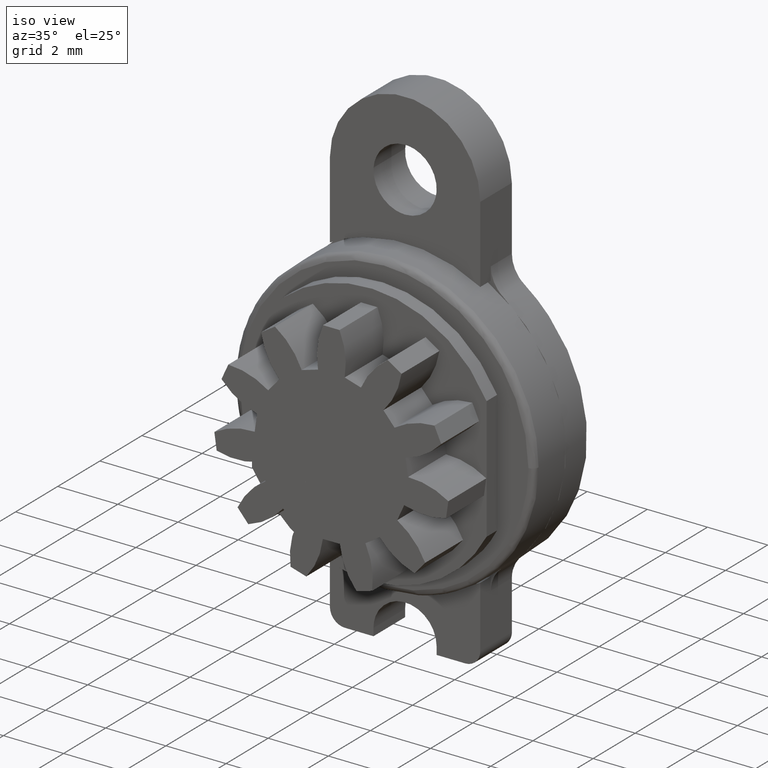
[diagram: clean part render]
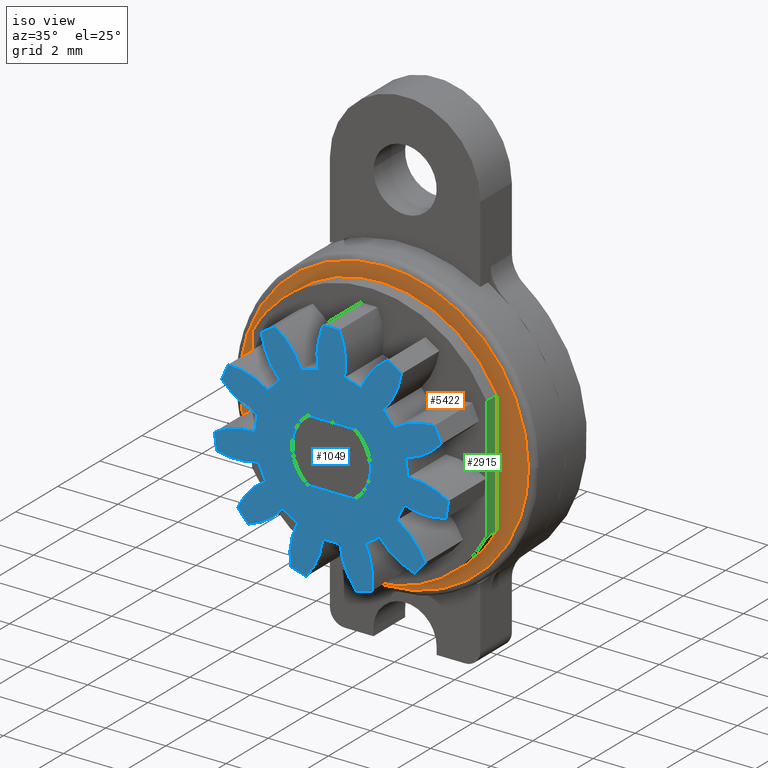
[diagram: same view with three faces highlighted in distinct colors, each labeled with its STEP entity id]
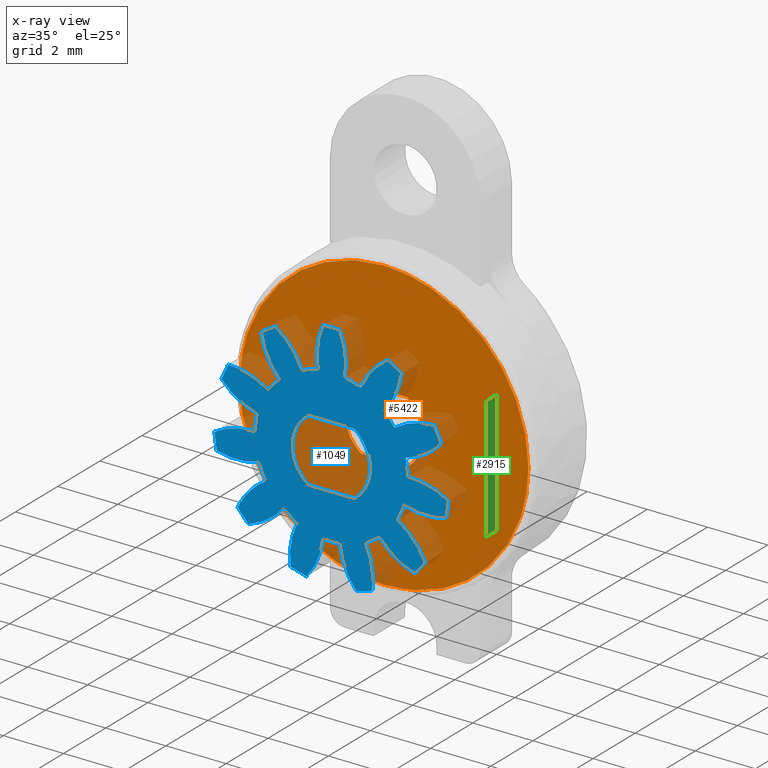
[diagram: x-ray of the same camera — body ghosted, the three highlighted faces saturated]
A machine part, iso view with three faces highlighted in distinct colors.
The next image is the same camera in x-ray (body ghosted, the three faces saturated) — at least one of them is partly hidden behind the body in this view.
Their STEP definitions:

[orange] entity #5422 — the highlighted face is a freeform B-spline surface patch.
#5092=CARTESIAN_POINT('',(-4.800000000157622,-2.499999999999985,-4.426226E-016));
#5093=VERTEX_POINT('',#5092);
#5107=CARTESIAN_POINT('',(-7.105427E-015,-2.499999999999970,4.800000000000000));
#5108=VERTEX_POINT('',#5107);
#5109=CARTESIAN_POINT('',(-7.105427E-015,-2.499999999999970,4.800000000000000));
#5110=CARTESIAN_POINT('',(-4.800000000078817,-2.499999999999993,4.800000000000001));
#5111=CARTESIAN_POINT('',(-4.800000000157622,-2.499999999999985,-4.426226E-016));
#5119=(BOUNDED_CURVE()B_SPLINE_CURVE(2,(#5109,#5110,#5111),.UNSPECIFIED.,.F.,.U.)B_SPLINE_CURVE_WITH_KNOTS((3,3),(0.0,0.250000000000000),.UNSPECIFIED.)CURVE()GEOMETRIC_REPRESENTATION_ITEM()RATIONAL_B_SPLINE_CURVE((1.0,0.707106781186547,1.0))REPRESENTATION_ITEM(''));
#5120=EDGE_CURVE('',#5108,#5093,#5119,.T.);
#5122=CARTESIAN_POINT('',(4.800000000157608,-2.499999999999985,2.213113E-016));
#5123=VERTEX_POINT('',#5122);
#5124=CARTESIAN_POINT('',(4.800000000157608,-2.499999999999985,2.213113E-016));
#5125=CARTESIAN_POINT('',(4.800000000078800,-2.499999999999978,4.800000000000001));
#5126=CARTESIAN_POINT('',(-7.105427E-015,-2.499999999999970,4.800000000000000));
#5134=(BOUNDED_CURVE()B_SPLINE_CURVE(2,(#5124,#5125,#5126),.UNSPECIFIED.,.F.,.U.)B_SPLINE_CURVE_WITH_KNOTS((3,3),(0.750000000000000,1.0),.UNSPECIFIED.)CURVE()GEOMETRIC_REPRESENTATION_ITEM()RATIONAL_B_SPLINE_CURVE((1.0,0.707106781186547,1.0))REPRESENTATION_ITEM(''));
#5135=EDGE_CURVE('',#5123,#5108,#5134,.T.);
#5187=CARTESIAN_POINT('',(-7.105427E-015,-2.500000000000000,-4.800000000000000));
#5188=VERTEX_POINT('',#5187);
#5189=CARTESIAN_POINT('',(-7.105427E-015,-2.500000000000000,-4.800000000000000));
#5190=CARTESIAN_POINT('',(4.800000000078800,-2.499999999999992,-4.800000000000001));
#5191=CARTESIAN_POINT('',(4.800000000157608,-2.499999999999985,2.213113E-016));
#5199=(BOUNDED_CURVE()B_SPLINE_CURVE(2,(#5189,#5190,#5191),.UNSPECIFIED.,.F.,.U.)B_SPLINE_CURVE_WITH_KNOTS((3,3),(0.500000000000000,0.750000000000000),.UNSPECIFIED.)CURVE()GEOMETRIC_REPRESENTATION_ITEM()RATIONAL_B_SPLINE_CURVE((1.0,0.707106781186547,1.0))REPRESENTATION_ITEM(''));
#5200=EDGE_CURVE('',#5188,#5123,#5199,.T.);
#5202=CARTESIAN_POINT('',(-4.800000000157622,-2.499999999999985,-4.426226E-016));
#5203=CARTESIAN_POINT('',(-4.800000000078815,-2.499999999999992,-4.800000000000001));
#5204=CARTESIAN_POINT('',(-7.105427E-015,-2.500000000000000,-4.800000000000000));
#5212=(BOUNDED_CURVE()B_SPLINE_CURVE(2,(#5202,#5203,#5204),.UNSPECIFIED.,.F.,.U.)B_SPLINE_CURVE_WITH_KNOTS((3,3),(0.250000000000000,0.500000000000000),.UNSPECIFIED.)CURVE()GEOMETRIC_REPRESENTATION_ITEM()RATIONAL_B_SPLINE_CURVE((1.0,0.707106781186547,1.0))REPRESENTATION_ITEM(''));
#5213=EDGE_CURVE('',#5093,#5188,#5212,.T.);
#5281=CARTESIAN_POINT('',(-0.766485485837795,-2.500000000000000,-1.050000000000026));
#5282=VERTEX_POINT('',#5281);
#5283=CARTESIAN_POINT('',(0.766485485837798,-2.499999999999945,-1.050000000000026));
#5284=VERTEX_POINT('',#5283);
#5285=CARTESIAN_POINT('',(-0.766485485837795,-2.500000000000000,-1.050000000000026));
#5286=CARTESIAN_POINT('',(0.766485485837798,-2.499999999999945,-1.050000000000026));
#5287=QUASI_UNIFORM_CURVE('',1,(#5285,#5286),.UNSPECIFIED.,.F.,.U.);
#5288=EDGE_CURVE('',#5282,#5284,#5287,.T.);
#5318=CARTESIAN_POINT('',(-0.766485485837798,-2.499999999999945,1.049999999999970));
#5319=VERTEX_POINT('',#5318);
#5320=CARTESIAN_POINT('',(-0.766485485837798,-2.499999999999945,1.049999999999970));
#5321=CARTESIAN_POINT('',(-0.848769127117560,-2.499999999999942,0.989961203155818));
#5322=CARTESIAN_POINT('',(-0.961507683441346,-2.499999999999946,0.885286338630762));
#5323=CARTESIAN_POINT('',(-1.095941793741863,-2.499999999999942,0.707111347980560));
#5324=CARTESIAN_POINT('',(-1.198266005900935,-2.499999999999947,0.522843228678610));
#5325=CARTESIAN_POINT('',(-1.267372553453557,-2.499999999999942,0.316513513903295));
#5326=CARTESIAN_POINT('',(-1.301675891330095,-2.499999999999946,0.095861830066207));
#5327=CARTESIAN_POINT('',(-1.301675834292517,-2.499999999999943,-0.089470962264314));
#5328=CARTESIAN_POINT('',(-1.270871125144629,-2.499999999999915,-0.297647965220917));
#5329=CARTESIAN_POINT('',(-1.206381826242138,-2.500000000000020,-0.505305415451064));
#5330=CARTESIAN_POINT('',(-1.103629378670650,-2.499999999999902,-0.696932247076302));
#5331=CARTESIAN_POINT('',(-0.961505180852002,-2.499999999999980,-0.885284173776135));
#5332=CARTESIAN_POINT('',(-0.848771122697368,-2.499999999999914,-0.989961039592512));
#5333=CARTESIAN_POINT('',(-0.766485485837795,-2.500000000000000,-1.050000000000026));
#5334=B_SPLINE_CURVE_WITH_KNOTS('',3,(#5320,#5321,#5322,#5323,#5324,#5325,#5326,#5327,#5328,#5329,#5330,#5331,#5332,#5333),.UNSPECIFIED.,.F.,.U.,(4,1,1,1,1,1,1,1,1,1,1,4),(9.535241E-009,0.305572015904313,0.458364885698850,0.668449224907357,0.935831314500061,1.107721725618335,1.336891373887622,1.489684144643727,1.737967352483579,1.986250544938810,2.139037937150619,2.444613708668177),.UNSPECIFIED.);
#5335=EDGE_CURVE('',#5319,#5282,#5334,.T.);
#5352=CARTESIAN_POINT('',(0.766485485837798,-2.499999999999945,1.049999999999970));
#5353=VERTEX_POINT('',#5352);
#5354=CARTESIAN_POINT('',(0.766485485837798,-2.499999999999945,1.049999999999970));
#5355=CARTESIAN_POINT('',(-0.766485485837798,-2.499999999999945,1.049999999999970));
#5356=QUASI_UNIFORM_CURVE('',1,(#5354,#5355),.UNSPECIFIED.,.F.,.U.);
#5357=EDGE_CURVE('',#5353,#5319,#5356,.T.);
#5383=CARTESIAN_POINT('',(0.766485485837798,-2.499999999999945,-1.050000000000026));
#5384=CARTESIAN_POINT('',(0.859061955921107,-2.499999999999941,-0.982463314623151));
#5385=CARTESIAN_POINT('',(0.989005761777454,-2.499999999999954,-0.858186011193077));
#5386=CARTESIAN_POINT('',(1.137284371922879,-2.499999999999937,-0.642520455198059));
#5387=CARTESIAN_POINT('',(1.223224199306736,-2.499999999999945,-0.456793239443079));
#5388=CARTESIAN_POINT('',(1.288318444938710,-2.499999999999946,-0.223250290019262));
#5389=CARTESIAN_POINT('',(1.310334289969376,-2.499999999999942,0.025772638535556));
#5390=CARTESIAN_POINT('',(1.275725034966710,-2.499999999999951,0.285876172639579));
#5391=CARTESIAN_POINT('',(1.210242263928573,-2.499999999999930,0.486215437536861));
#5392=CARTESIAN_POINT('',(1.114887722337810,-2.499999999999965,0.680948920417852));
#5393=CARTESIAN_POINT('',(0.976350018082213,-2.499999999999923,0.873211610592693));
#5394=CARTESIAN_POINT('',(0.838478351625388,-2.499999999999971,0.997461114532531));
#5395=CARTESIAN_POINT('',(0.766485485837798,-2.499999999999945,1.049999999999970));
#5396=B_SPLINE_CURVE_WITH_KNOTS('',3,(#5383,#5384,#5385,#5386,#5387,#5388,#5389,#5390,#5391,#5392,#5393,#5394,#5395),.UNSPECIFIED.,.F.,.U.,(4,1,1,1,1,1,1,1,1,1,4),(9.536027E-009,0.343769626836087,0.534758150989173,0.783043234385697,0.954931006051719,1.260500953949856,1.527882629339942,1.737967352483820,1.890756620383768,2.177236421848782,2.444613708668204),.UNSPECIFIED.);
#5397=EDGE_CURVE('',#5284,#5353,#5396,.T.);
#5405=CARTESIAN_POINT('',(-5.279519981566705,-2.500000000000000,5.279519981393337));
#5406=CARTESIAN_POINT('',(5.279520239058757,-2.500000000000000,5.279519981393337));
#5407=CARTESIAN_POINT('',(-5.279519981566705,-2.500000000000000,-5.279520238885403));
#5408=CARTESIAN_POINT('',(5.279520239058757,-2.500000000000000,-5.279520238885403));
#5409=B_SPLINE_SURFACE_WITH_KNOTS('',1,1,((#5405,#5407),(#5406,#5408)),.UNSPECIFIED.,.F.,.F.,.U.,(2,2),(2,2),(0.0,10.559040220625461),(0.0,10.559040220278741),.UNSPECIFIED.);
#5410=ORIENTED_EDGE('',*,*,#5120,.T.);
#5411=ORIENTED_EDGE('',*,*,#5213,.T.);
#5412=ORIENTED_EDGE('',*,*,#5200,.T.);
#5413=ORIENTED_EDGE('',*,*,#5135,.T.);
#5414=EDGE_LOOP('',(#5410,#5411,#5412,#5413));
#5415=FACE_OUTER_BOUND('',#5414,.T.);
#5416=ORIENTED_EDGE('',*,*,#5357,.F.);
#5417=ORIENTED_EDGE('',*,*,#5397,.F.);
#5418=ORIENTED_EDGE('',*,*,#5288,.F.);
#5419=ORIENTED_EDGE('',*,*,#5335,.F.);
#5420=EDGE_LOOP('',(#5416,#5417,#5418,#5419));
#5421=FACE_BOUND('',#5420,.T.);
#5422=ADVANCED_FACE('',(#5415,#5421),#5409,.F.);

[blue] entity #1049 — the highlighted face is a freeform B-spline surface patch.
#255=CARTESIAN_POINT('',(-0.766485485837795,-5.0,-1.050000000000026));
#256=VERTEX_POINT('',#255);
#257=CARTESIAN_POINT('',(0.766485485837798,-5.0,-1.050000000000026));
#258=VERTEX_POINT('',#257);
#259=CARTESIAN_POINT('',(-0.766485485837795,-5.0,-1.050000000000026));
#260=CARTESIAN_POINT('',(0.766485485837798,-5.0,-1.050000000000026));
#261=QUASI_UNIFORM_CURVE('',1,(#259,#260),.UNSPECIFIED.,.F.,.U.);
#262=EDGE_CURVE('',#256,#258,#261,.T.);
#292=CARTESIAN_POINT('',(-0.766485485837798,-5.0,1.049999999999970));
#293=VERTEX_POINT('',#292);
#294=CARTESIAN_POINT('',(-0.766485485837798,-5.0,1.049999999999970));
#295=CARTESIAN_POINT('',(-0.859061627983366,-4.999999999999991,0.982464951849980));
#296=CARTESIAN_POINT('',(-1.002937130798695,-5.000000000000015,0.844872364359344));
#297=CARTESIAN_POINT('',(-1.139673454736569,-4.999999999999988,0.636281707336016));
#298=CARTESIAN_POINT('',(-1.224004276888058,-5.000000000000019,0.450450332518622));
#299=CARTESIAN_POINT('',(-1.287191102593653,-4.999999999999996,0.236022747463944));
#300=CARTESIAN_POINT('',(-1.312606643155473,-4.999999999999989,-0.051315405970564));
#301=CARTESIAN_POINT('',(-1.266104815248107,-5.000000000000015,-0.336534419304740));
#302=CARTESIAN_POINT('',(-1.167913272175169,-4.999999999999971,-0.586175603785272));
#303=CARTESIAN_POINT('',(-1.020634345932201,-5.000000000000036,-0.825947782834402));
#304=CARTESIAN_POINT('',(-0.869358624318706,-4.999999999999997,-0.974970198910762));
#305=CARTESIAN_POINT('',(-0.766485485837795,-5.0,-1.050000000000026));
#306=B_SPLINE_CURVE_WITH_KNOTS('',3,(#294,#295,#296,#297,#298,#299,#300,#301,#302,#303,#304,#305),.UNSPECIFIED.,.F.,.U.,(4,1,1,1,1,1,1,1,1,4),(9.535218E-009,0.343769626835391,0.592054721718542,0.744845264380893,0.954931006051217,1.260500953949453,1.604274112916795,1.814361406707968,2.062646453574359,2.444613708668184),.UNSPECIFIED.);
#307=EDGE_CURVE('',#293,#256,#306,.T.);
#324=CARTESIAN_POINT('',(0.766485485837798,-5.0,1.049999999999970));
#325=VERTEX_POINT('',#324);
#326=CARTESIAN_POINT('',(0.766485485837798,-5.0,1.049999999999970));
#327=CARTESIAN_POINT('',(-0.766485485837798,-5.0,1.049999999999970));
#328=QUASI_UNIFORM_CURVE('',1,(#326,#327),.UNSPECIFIED.,.F.,.U.);
#329=EDGE_CURVE('',#325,#293,#328,.T.);
#355=CARTESIAN_POINT('',(0.766485485837798,-5.0,-1.050000000000026));
#356=CARTESIAN_POINT('',(0.869361388065699,-5.000000000000011,-0.974971079008481));
#357=CARTESIAN_POINT('',(1.011458243910991,-4.999999999999985,-0.834976094808754));
#358=CARTESIAN_POINT('',(1.165486809425825,-5.000000000000020,-0.592313433878270));
#359=CARTESIAN_POINT('',(1.246596635257172,-4.999999999999991,-0.390400606104878));
#360=CARTESIAN_POINT('',(1.293798130401958,-5.000000000000002,-0.172143254948819));
#361=CARTESIAN_POINT('',(1.306942718745986,-4.999999999999997,0.051150375652212));
#362=CARTESIAN_POINT('',(1.272359674589726,-5.000000000000006,0.311253315251293));
#363=CARTESIAN_POINT('',(1.172663464323494,-4.999999999999965,0.588503509884419));
#364=CARTESIAN_POINT('',(1.003808924375306,-5.000000000000111,0.846047438302722));
#365=CARTESIAN_POINT('',(0.848765788580291,-4.999999999999892,0.989957592228890));
#366=CARTESIAN_POINT('',(0.766485485837798,-5.0,1.049999999999970));
#367=B_SPLINE_CURVE_WITH_KNOTS('',3,(#355,#356,#357,#358,#359,#360,#361,#362,#363,#364,#365,#366),.UNSPECIFIED.,.F.,.U.,(4,1,1,1,1,1,1,1,1,4),(9.535776E-009,0.381967863496254,0.592054721718982,0.859436871902846,1.031328049701592,1.260500953949755,1.527882629339873,1.814361406708150,2.139037937150719,2.444613708668199),.UNSPECIFIED.);
#368=EDGE_CURVE('',#258,#325,#367,.T.);
#376=CARTESIAN_POINT('',(-4.278189618792946,-5.0,-4.194642650514925));
#377=CARTESIAN_POINT('',(4.278189825959179,-5.0,-4.194642650514925));
#378=CARTESIAN_POINT('',(-4.278189618792946,-5.0,4.285047764823158));
#379=CARTESIAN_POINT('',(4.278189825959179,-5.0,4.285047764823158));
#380=B_SPLINE_SURFACE_WITH_KNOTS('',1,1,((#376,#378),(#377,#379)),.UNSPECIFIED.,.F.,.F.,.U.,(2,2),(2,2),(0.0,8.556379444752125),(0.0,8.479690415338084),.UNSPECIFIED.);
#381=CARTESIAN_POINT('',(0.272050247602097,-5.0,3.890499796013320));
#382=VERTEX_POINT('',#381);
#383=CARTESIAN_POINT('',(-0.272050247602082,-5.0,3.890499796013320));
#384=VERTEX_POINT('',#383);
#385=CARTESIAN_POINT('',(0.272050247602097,-5.0,3.890499796013314));
#386=CARTESIAN_POINT('',(8.135419E-015,-5.0,3.909523402516572));
#387=CARTESIAN_POINT('',(-0.272050247602082,-5.0,3.890499796013314));
#395=(BOUNDED_CURVE()B_SPLINE_CURVE(2,(#385,#386,#387),.UNSPECIFIED.,.F.,.U.)CURVE()GEOMETRIC_REPRESENTATION_ITEM()QUASI_UNIFORM_CURVE()RATIONAL_B_SPLINE_CURVE((1.0,0.997564050259824,1.0))REPRESENTATION_ITEM(''));
#396=EDGE_CURVE('',#382,#384,#395,.T.);
#397=ORIENTED_EDGE('',*,*,#396,.T.);
#398=CARTESIAN_POINT('',(-0.442802853050668,-5.0,2.511259770181130));
#399=VERTEX_POINT('',#398);
#400=CARTESIAN_POINT('',(-0.272050247602082,-5.0,3.890499796013319));
#401=CARTESIAN_POINT('',(-0.569020483803022,-5.0,3.227075524782181));
#402=CARTESIAN_POINT('',(-0.442802853050668,-5.0,2.511259770181130));
#410=(BOUNDED_CURVE()B_SPLINE_CURVE(2,(#400,#401,#402),.UNSPECIFIED.,.F.,.U.)CURVE()GEOMETRIC_REPRESENTATION_ITEM()QUASI_UNIFORM_CURVE()RATIONAL_B_SPLINE_CURVE((1.0,0.956011273868735,1.0))REPRESENTATION_ITEM(''));
#411=EDGE_CURVE('',#384,#399,#410,.T.);
#412=ORIENTED_EDGE('',*,*,#411,.T.);
#413=CARTESIAN_POINT('',(-0.985180069397917,-5.0,2.352003450435630));
#414=VERTEX_POINT('',#413);
#415=CARTESIAN_POINT('',(-0.442802853050667,-5.0,2.511259770181130));
#416=CARTESIAN_POINT('',(-0.722872020991560,-5.0,2.461876019408581));
#417=CARTESIAN_POINT('',(-0.985180069397916,-5.0,2.352003450435629));
#425=(BOUNDED_CURVE()B_SPLINE_CURVE(2,(#415,#416,#417),.UNSPECIFIED.,.F.,.U.)CURVE()GEOMETRIC_REPRESENTATION_ITEM()QUASI_UNIFORM_CURVE()RATIONAL_B_SPLINE_CURVE((1.0,0.993838464487634,1.0))REPRESENTATION_ITEM(''));
#426=EDGE_CURVE('',#399,#414,#425,.T.);
#427=ORIENTED_EDGE('',*,*,#426,.T.);
#428=CARTESIAN_POINT('',(-1.874499756496710,-5.0,3.419978167020045));
#429=VERTEX_POINT('',#428);
#430=CARTESIAN_POINT('',(-0.985180069397921,-5.0,2.352003450435628));
#431=CARTESIAN_POINT('',(-1.265998256017910,-5.000000000000002,3.022424386050909));
#432=CARTESIAN_POINT('',(-1.874499756496711,-5.0,3.419978167020042));
#440=(BOUNDED_CURVE()B_SPLINE_CURVE(2,(#430,#431,#432),.UNSPECIFIED.,.F.,.U.)CURVE()GEOMETRIC_REPRESENTATION_ITEM()QUASI_UNIFORM_CURVE()RATIONAL_B_SPLINE_CURVE((1.0,0.956011273868735,1.0))REPRESENTATION_ITEM(''));
#441=EDGE_CURVE('',#414,#429,#440,.T.);
#442=ORIENTED_EDGE('',*,*,#441,.T.);
#443=CARTESIAN_POINT('',(-2.332226220442440,-5.0,3.125815230732735));
#444=VERTEX_POINT('',#443);
#445=CARTESIAN_POINT('',(-1.874499756496706,-5.0,3.419978167020041));
#446=CARTESIAN_POINT('',(-2.113647926632828,-5.0,3.288900375059340));
#447=CARTESIAN_POINT('',(-2.332226220442439,-5.0,3.125815230732735));
#455=(BOUNDED_CURVE()B_SPLINE_CURVE(2,(#445,#446,#447),.UNSPECIFIED.,.F.,.U.)CURVE()GEOMETRIC_REPRESENTATION_ITEM()QUASI_UNIFORM_CURVE()RATIONAL_B_SPLINE_CURVE((1.0,0.997564050259824,1.0))REPRESENTATION_ITEM(''));
#456=EDGE_CURVE('',#429,#444,#455,.T.);
#457=ORIENTED_EDGE('',*,*,#456,.T.);
#458=CARTESIAN_POINT('',(-1.730198998579035,-5.0,1.873208857900280));
#459=VERTEX_POINT('',#458);
#460=CARTESIAN_POINT('',(-2.332226220442437,-5.0,3.125815230732736));
#461=CARTESIAN_POINT('',(-2.223379240815983,-5.000000000000001,2.407152987482124));
#462=CARTESIAN_POINT('',(-1.730198998579035,-5.0,1.873208857900282));
#470=(BOUNDED_CURVE()B_SPLINE_CURVE(2,(#460,#461,#462),.UNSPECIFIED.,.F.,.U.)CURVE()GEOMETRIC_REPRESENTATION_ITEM()QUASI_UNIFORM_CURVE()RATIONAL_B_SPLINE_CURVE((1.0,0.956011273868736,1.0))REPRESENTATION_ITEM(''));
#471=EDGE_CURVE('',#444,#459,#470,.T.);
#472=ORIENTED_EDGE('',*,*,#471,.T.);
#473=CARTESIAN_POINT('',(-2.100375281269475,-5.0,1.446002654849620));
#474=VERTEX_POINT('',#473);
#475=CARTESIAN_POINT('',(-1.730198998579036,-5.0,1.873208857900282));
#476=CARTESIAN_POINT('',(-1.939109304251554,-5.0,1.680247779298189));
#477=CARTESIAN_POINT('',(-2.100375281269475,-5.0,1.446002654849619));
#485=(BOUNDED_CURVE()B_SPLINE_CURVE(2,(#475,#476,#477),.UNSPECIFIED.,.F.,.U.)CURVE()GEOMETRIC_REPRESENTATION_ITEM()QUASI_UNIFORM_CURVE()RATIONAL_B_SPLINE_CURVE((1.0,0.993838464487633,1.0))REPRESENTATION_ITEM(''));
#486=EDGE_CURVE('',#459,#474,#485,.T.);
#487=ORIENTED_EDGE('',*,*,#486,.T.);
#488=CARTESIAN_POINT('',(-3.425909333454970,-5.0,1.863637636169145));
#489=VERTEX_POINT('',#488);
#490=CARTESIAN_POINT('',(-2.100375281269475,-5.0,1.446002654849619));
#491=CARTESIAN_POINT('',(-2.699071495320986,-5.0,1.858174861734311));
#492=CARTESIAN_POINT('',(-3.425909333454970,-5.0,1.863637636169146));
#500=(BOUNDED_CURVE()B_SPLINE_CURVE(2,(#490,#491,#492),.UNSPECIFIED.,.F.,.U.)CURVE()GEOMETRIC_REPRESENTATION_ITEM()QUASI_UNIFORM_CURVE()RATIONAL_B_SPLINE_CURVE((1.0,0.956011273868735,1.0))REPRESENTATION_ITEM(''));
#501=EDGE_CURVE('',#474,#489,#500,.T.);
#502=ORIENTED_EDGE('',*,*,#501,.T.);
#503=CARTESIAN_POINT('',(-3.651936848215715,-5.0,1.368706417258362));
#504=VERTEX_POINT('',#503);
#505=CARTESIAN_POINT('',(-3.425909333454964,-5.0,1.863637636169144));
#506=CARTESIAN_POINT('',(-3.556227571970211,-5.0,1.624074718473123));
#507=CARTESIAN_POINT('',(-3.651936848215714,-5.0,1.368706417258363));
#515=(BOUNDED_CURVE()B_SPLINE_CURVE(2,(#505,#506,#507),.UNSPECIFIED.,.F.,.U.)CURVE()GEOMETRIC_REPRESENTATION_ITEM()QUASI_UNIFORM_CURVE()RATIONAL_B_SPLINE_CURVE((1.0,0.997564050259824,1.0))REPRESENTATION_ITEM(''));
#516=EDGE_CURVE('',#489,#504,#515,.T.);
#517=ORIENTED_EDGE('',*,*,#516,.T.);
#518=CARTESIAN_POINT('',(-2.468269187951015,-5.0,0.640427369661539));
#519=VERTEX_POINT('',#518);
#520=CARTESIAN_POINT('',(-3.651936848215715,-5.0,1.368706417258364));
#521=CARTESIAN_POINT('',(-3.171830799661239,-5.000000000000002,0.822976386025692));
#522=CARTESIAN_POINT('',(-2.468269187951016,-5.0,0.640427369661537));
#530=(BOUNDED_CURVE()B_SPLINE_CURVE(2,(#520,#521,#522),.UNSPECIFIED.,.F.,.U.)CURVE()GEOMETRIC_REPRESENTATION_ITEM()QUASI_UNIFORM_CURVE()RATIONAL_B_SPLINE_CURVE((1.0,0.956011273868735,1.0))REPRESENTATION_ITEM(''));
#531=EDGE_CURVE('',#504,#519,#530,.T.);
#532=ORIENTED_EDGE('',*,*,#531,.T.);
#533=CARTESIAN_POINT('',(-2.548716182961580,-5.0,0.080906234059634));
#534=VERTEX_POINT('',#533);
#535=CARTESIAN_POINT('',(-2.468269187951016,-5.0,0.640427369661541));
#536=CARTESIAN_POINT('',(-2.539693085501345,-5.0,0.365152742188922));
#537=CARTESIAN_POINT('',(-2.548716182961581,-5.0,0.080906234059635));
#545=(BOUNDED_CURVE()B_SPLINE_CURVE(2,(#535,#536,#537),.UNSPECIFIED.,.F.,.U.)CURVE()GEOMETRIC_REPRESENTATION_ITEM()QUASI_UNIFORM_CURVE()RATIONAL_B_SPLINE_CURVE((1.0,0.993838464487633,1.0))REPRESENTATION_ITEM(''));
#546=EDGE_CURVE('',#519,#534,#545,.T.);
#547=ORIENTED_EDGE('',*,*,#546,.T.);
#548=CARTESIAN_POINT('',(-3.889616905123185,-5.0,-0.284394675371960));
#549=VERTEX_POINT('',#548);
#550=CARTESIAN_POINT('',(-2.548716182961580,-5.0,0.080906234059630));
#551=CARTESIAN_POINT('',(-3.275208606976707,-5.0,0.103967949009631));
#552=CARTESIAN_POINT('',(-3.889616905123182,-5.0,-0.284394675371964));
#560=(BOUNDED_CURVE()B_SPLINE_CURVE(2,(#550,#551,#552),.UNSPECIFIED.,.F.,.U.)CURVE()GEOMETRIC_REPRESENTATION_ITEM()QUASI_UNIFORM_CURVE()RATIONAL_B_SPLINE_CURVE((1.0,0.956011273868735,1.0))REPRESENTATION_ITEM(''));
#561=EDGE_CURVE('',#534,#549,#560,.T.);
#562=ORIENTED_EDGE('',*,*,#561,.T.);
#563=CARTESIAN_POINT('',(-3.812183331912850,-5.0,-0.822957012173662));
#564=VERTEX_POINT('',#563);
#565=CARTESIAN_POINT('',(-3.889616905123180,-5.0,-0.284394675371959));
#566=CARTESIAN_POINT('',(-3.869730092140709,-5.0,-0.556383185228808));
#567=CARTESIAN_POINT('',(-3.812183331912849,-5.0,-0.822957012173660));
#575=(BOUNDED_CURVE()B_SPLINE_CURVE(2,(#565,#566,#567),.UNSPECIFIED.,.F.,.U.)CURVE()GEOMETRIC_REPRESENTATION_ITEM()QUASI_UNIFORM_CURVE()RATIONAL_B_SPLINE_CURVE((1.0,0.997564050259824,1.0))REPRESENTATION_ITEM(''));
#576=EDGE_CURVE('',#549,#564,#575,.T.);
#577=ORIENTED_EDGE('',*,*,#576,.T.);
#578=CARTESIAN_POINT('',(-2.422681351375640,-5.0,-0.795685283071563));
#579=VERTEX_POINT('',#578);
#580=CARTESIAN_POINT('',(-3.812183331912851,-5.0,-0.822957012173661));
#581=CARTESIAN_POINT('',(-3.113248492332056,-5.000000000000002,-1.022489402697042));
#582=CARTESIAN_POINT('',(-2.422681351375641,-5.0,-0.795685283071563));
#590=(BOUNDED_CURVE()B_SPLINE_CURVE(2,(#580,#581,#582),.UNSPECIFIED.,.F.,.U.)CURVE()GEOMETRIC_REPRESENTATION_ITEM()QUASI_UNIFORM_CURVE()RATIONAL_B_SPLINE_CURVE((1.0,0.956011273868735,1.0))REPRESENTATION_ITEM(''));
#591=EDGE_CURVE('',#564,#579,#590,.T.);
#592=ORIENTED_EDGE('',*,*,#591,.T.);
#593=CARTESIAN_POINT('',(-2.187857706243190,-5.0,-1.309877344346510));
#594=VERTEX_POINT('',#593);
#595=CARTESIAN_POINT('',(-2.422681351375640,-5.0,-0.795685283071561));
#596=CARTESIAN_POINT('',(-2.333942258025456,-5.0,-1.065875710331404));
#597=CARTESIAN_POINT('',(-2.187857706243189,-5.0,-1.309877344346509));
#605=(BOUNDED_CURVE()B_SPLINE_CURVE(2,(#595,#596,#597),.UNSPECIFIED.,.F.,.U.)CURVE()GEOMETRIC_REPRESENTATION_ITEM()QUASI_UNIFORM_CURVE()RATIONAL_B_SPLINE_CURVE((1.0,0.993838464487634,1.0))REPRESENTATION_ITEM(''));
#606=EDGE_CURVE('',#579,#594,#605,.T.);
#607=ORIENTED_EDGE('',*,*,#606,.T.);
#608=CARTESIAN_POINT('',(-3.118398594136500,-5.0,-2.342133687065595));
#609=VERTEX_POINT('',#608);
#610=CARTESIAN_POINT('',(-2.187857706243185,-5.0,-1.309877344346515));
#611=CARTESIAN_POINT('',(-2.811490129121217,-5.000000000000002,-1.683248052869668));
#612=CARTESIAN_POINT('',(-3.118398594136496,-5.0,-2.342133687065596));
#620=(BOUNDED_CURVE()B_SPLINE_CURVE(2,(#610,#611,#612),.UNSPECIFIED.,.F.,.U.)CURVE()GEOMETRIC_REPRESENTATION_ITEM()QUASI_UNIFORM_CURVE()RATIONAL_B_SPLINE_CURVE((1.0,0.956011273868735,1.0))REPRESENTATION_ITEM(''));
#621=EDGE_CURVE('',#594,#609,#620,.T.);
#622=ORIENTED_EDGE('',*,*,#621,.T.);
#623=CARTESIAN_POINT('',(-2.762088545290025,-5.0,-2.753337405400505));
#624=VERTEX_POINT('',#623);
#625=CARTESIAN_POINT('',(-3.118398594136497,-5.0,-2.342133687065594));
#626=CARTESIAN_POINT('',(-2.954620652254501,-5.0,-2.560193359122683));
#627=CARTESIAN_POINT('',(-2.762088545290026,-5.0,-2.753337405400505));
#635=(BOUNDED_CURVE()B_SPLINE_CURVE(2,(#625,#626,#627),.UNSPECIFIED.,.F.,.U.)CURVE()GEOMETRIC_REPRESENTATION_ITEM()QUASI_UNIFORM_CURVE()RATIONAL_B_SPLINE_CURVE((1.0,0.997564050259824,1.0))REPRESENTATION_ITEM(''));
#636=EDGE_CURVE('',#609,#624,#635,.T.);
#637=ORIENTED_EDGE('',*,*,#636,.T.);
#638=CARTESIAN_POINT('',(-1.607909304833865,-5.0,-1.979173480882530));
#639=VERTEX_POINT('',#638);
#640=CARTESIAN_POINT('',(-2.762088545290025,-5.0,-2.753337405400504));
#641=CARTESIAN_POINT('',(-2.066231787452495,-5.0,-2.543322031154616));
#642=CARTESIAN_POINT('',(-1.607909304833866,-5.0,-1.979173480882529));
#650=(BOUNDED_CURVE()B_SPLINE_CURVE(2,(#640,#641,#642),.UNSPECIFIED.,.F.,.U.)CURVE()GEOMETRIC_REPRESENTATION_ITEM()QUASI_UNIFORM_CURVE()RATIONAL_B_SPLINE_CURVE((1.0,0.956011273868736,1.0))REPRESENTATION_ITEM(''));
#651=EDGE_CURVE('',#624,#639,#650,.T.);
#652=ORIENTED_EDGE('',*,*,#651,.T.);
#653=CARTESIAN_POINT('',(-1.132369867582494,-5.0,-2.284784121747870));
#654=VERTEX_POINT('',#653);
#655=CARTESIAN_POINT('',(-1.607909304833864,-5.0,-1.979173480882527));
#656=CARTESIAN_POINT('',(-1.387181255675706,-5.0,-2.158496156487989));
#657=CARTESIAN_POINT('',(-1.132369867582495,-5.0,-2.284784121747870));
#665=(BOUNDED_CURVE()B_SPLINE_CURVE(2,(#655,#656,#657),.UNSPECIFIED.,.F.,.U.)CURVE()GEOMETRIC_REPRESENTATION_ITEM()QUASI_UNIFORM_CURVE()RATIONAL_B_SPLINE_CURVE((1.0,0.993838464487633,1.0))REPRESENTATION_ITEM(''));
#666=EDGE_CURVE('',#639,#654,#665,.T.);
#667=ORIENTED_EDGE('',*,*,#666,.T.);
#668=CARTESIAN_POINT('',(-1.357110764668054,-5.0,-3.656261803047215));
#669=VERTEX_POINT('',#668);
#670=CARTESIAN_POINT('',(-1.132369867582487,-5.0,-2.284784121747872));
#671=CARTESIAN_POINT('',(-1.455143401756768,-5.000000000000001,-2.936044692091610));
#672=CARTESIAN_POINT('',(-1.357110764668054,-5.0,-3.656261803047215));
#680=(BOUNDED_CURVE()B_SPLINE_CURVE(2,(#670,#671,#672),.UNSPECIFIED.,.F.,.U.)CURVE()GEOMETRIC_REPRESENTATION_ITEM()QUASI_UNIFORM_CURVE()RATIONAL_B_SPLINE_CURVE((1.0,0.956011273868736,1.0))REPRESENTATION_ITEM(''));
#681=EDGE_CURVE('',#654,#669,#680,.T.);
#682=ORIENTED_EDGE('',*,*,#681,.T.);
#683=CARTESIAN_POINT('',(-0.835050162944309,-5.0,-3.809552627982275));
#684=VERTEX_POINT('',#683);
#685=CARTESIAN_POINT('',(-1.357110764668055,-5.0,-3.656261803047214));
#686=CARTESIAN_POINT('',(-1.101440033150133,-5.0,-3.751160232274671));
#687=CARTESIAN_POINT('',(-0.835050162944312,-5.0,-3.809552627982276));
#695=(BOUNDED_CURVE()B_SPLINE_CURVE(2,(#685,#686,#687),.UNSPECIFIED.,.F.,.U.)CURVE()GEOMETRIC_REPRESENTATION_ITEM()QUASI_UNIFORM_CURVE()RATIONAL_B_SPLINE_CURVE((1.0,0.997564050259825,1.0))REPRESENTATION_ITEM(''));
#696=EDGE_CURVE('',#669,#684,#695,.T.);
#697=ORIENTED_EDGE('',*,*,#696,.T.);
#698=CARTESIAN_POINT('',(-0.282637415779163,-5.0,-2.534288083703520));
#699=VERTEX_POINT('',#698);
#700=CARTESIAN_POINT('',(-0.835050162944312,-5.0,-3.809552627982272));
#701=CARTESIAN_POINT('',(-0.363201090416403,-5.0,-3.256667886284371));
#702=CARTESIAN_POINT('',(-0.282637415779165,-5.0,-2.534288083703520));
#710=(BOUNDED_CURVE()B_SPLINE_CURVE(2,(#700,#701,#702),.UNSPECIFIED.,.F.,.U.)CURVE()GEOMETRIC_REPRESENTATION_ITEM()QUASI_UNIFORM_CURVE()RATIONAL_B_SPLINE_CURVE((1.0,0.956011273868736,1.0))REPRESENTATION_ITEM(''));
#711=EDGE_CURVE('',#684,#699,#710,.T.);
#712=ORIENTED_EDGE('',*,*,#711,.T.);
#713=CARTESIAN_POINT('',(0.282637402509670,-5.0,-2.534288085183410));
#714=VERTEX_POINT('',#713);
#715=CARTESIAN_POINT('',(-0.282637415779164,-5.0,-2.534288083703523));
#716=CARTESIAN_POINT('',(-6.717271E-009,-5.0,-2.565809325275646));
#717=CARTESIAN_POINT('',(0.282637402509670,-5.0,-2.534288085183409));
#725=(BOUNDED_CURVE()B_SPLINE_CURVE(2,(#715,#716,#717),.UNSPECIFIED.,.F.,.U.)CURVE()GEOMETRIC_REPRESENTATION_ITEM()QUASI_UNIFORM_CURVE()RATIONAL_B_SPLINE_CURVE((1.0,0.993838464487634,1.0))REPRESENTATION_ITEM(''));
#726=EDGE_CURVE('',#699,#714,#725,.T.);
#727=ORIENTED_EDGE('',*,*,#726,.T.);
#728=CARTESIAN_POINT('',(0.835050142997552,-5.0,-3.809552632354590));
#729=VERTEX_POINT('',#728);
#730=CARTESIAN_POINT('',(0.282637402509674,-5.0,-2.534288085183409));
#731=CARTESIAN_POINT('',(0.363201073364541,-5.0,-3.256667888186091));
#732=CARTESIAN_POINT('',(0.835050142997554,-5.0,-3.809552632354589));
#740=(BOUNDED_CURVE()B_SPLINE_CURVE(2,(#730,#731,#732),.UNSPECIFIED.,.F.,.U.)CURVE()GEOMETRIC_REPRESENTATION_ITEM()QUASI_UNIFORM_CURVE()RATIONAL_B_SPLINE_CURVE((1.0,0.956011273868736,1.0))REPRESENTATION_ITEM(''));
#741=EDGE_CURVE('',#714,#729,#740,.T.);
#742=ORIENTED_EDGE('',*,*,#741,.T.);
#743=CARTESIAN_POINT('',(1.357110745523926,-5.0,-3.656261810153030));
#744=VERTEX_POINT('',#743);
#745=CARTESIAN_POINT('',(0.835050142997552,-5.0,-3.809552632354589));
#746=CARTESIAN_POINT('',(1.101440013509115,-5.0,-3.751160238041799));
#747=CARTESIAN_POINT('',(1.357110745523926,-5.0,-3.656261810153030));
#755=(BOUNDED_CURVE()B_SPLINE_CURVE(2,(#745,#746,#747),.UNSPECIFIED.,.F.,.U.)CURVE()GEOMETRIC_REPRESENTATION_ITEM()QUASI_UNIFORM_CURVE()RATIONAL_B_SPLINE_CURVE((1.0,0.997564050259824,1.0))REPRESENTATION_ITEM(''));
#756=EDGE_CURVE('',#729,#744,#755,.T.);
#757=ORIENTED_EDGE('',*,*,#756,.T.);
#758=CARTESIAN_POINT('',(1.132369855619404,-5.0,-2.284784127676945));
#759=VERTEX_POINT('',#758);
#760=CARTESIAN_POINT('',(1.357110745523927,-5.0,-3.656261810153030));
#761=CARTESIAN_POINT('',(1.455143386383690,-5.000000000000001,-2.936044699710723));
#762=CARTESIAN_POINT('',(1.132369855619403,-5.0,-2.284784127676945));
#770=(BOUNDED_CURVE()B_SPLINE_CURVE(2,(#760,#761,#762),.UNSPECIFIED.,.F.,.U.)CURVE()GEOMETRIC_REPRESENTATION_ITEM()QUASI_UNIFORM_CURVE()RATIONAL_B_SPLINE_CURVE((1.0,0.956011273868736,1.0))REPRESENTATION_ITEM(''));
#771=EDGE_CURVE('',#744,#759,#770,.T.);
#772=ORIENTED_EDGE('',*,*,#771,.T.);
#773=CARTESIAN_POINT('',(1.607909294470945,-5.0,-1.979173489301525));
#774=VERTEX_POINT('',#773);
#775=CARTESIAN_POINT('',(1.132369855619405,-5.0,-2.284784127676947));
#776=CARTESIAN_POINT('',(1.387181244373856,-5.000000000000001,-2.158496163751257));
#777=CARTESIAN_POINT('',(1.607909294470945,-5.0,-1.979173489301525));
#785=(BOUNDED_CURVE()B_SPLINE_CURVE(2,(#775,#776,#777),.UNSPECIFIED.,.F.,.U.)CURVE()GEOMETRIC_REPRESENTATION_ITEM()QUASI_UNIFORM_CURVE()RATIONAL_B_SPLINE_CURVE((1.0,0.993838464487634,1.0))REPRESENTATION_ITEM(''));
#786=EDGE_CURVE('',#759,#774,#785,.T.);
#787=ORIENTED_EDGE('',*,*,#786,.T.);
#788=CARTESIAN_POINT('',(2.762088530873600,-5.0,-2.753337419862765));
#789=VERTEX_POINT('',#788);
#790=CARTESIAN_POINT('',(1.607909294470949,-5.0,-1.979173489301520));
#791=CARTESIAN_POINT('',(2.066231774135703,-5.000000000000001,-2.543322041973382));
#792=CARTESIAN_POINT('',(2.762088530873599,-5.0,-2.753337419862766));
#800=(BOUNDED_CURVE()B_SPLINE_CURVE(2,(#790,#791,#792),.UNSPECIFIED.,.F.,.U.)CURVE()GEOMETRIC_REPRESENTATION_ITEM()QUASI_UNIFORM_CURVE()RATIONAL_B_SPLINE_CURVE((1.0,0.956011273868736,1.0))REPRESENTATION_ITEM(''));
#801=EDGE_CURVE('',#774,#789,#800,.T.);
#802=ORIENTED_EDGE('',*,*,#801,.T.);
#803=CARTESIAN_POINT('',(3.118398581873130,-5.0,-2.342133703393490));
#804=VERTEX_POINT('',#803);
#805=CARTESIAN_POINT('',(2.762088530873601,-5.0,-2.753337419862766));
#806=CARTESIAN_POINT('',(2.954620638849373,-5.0,-2.560193374593042));
#807=CARTESIAN_POINT('',(3.118398581873129,-5.0,-2.342133703393489));
#815=(BOUNDED_CURVE()B_SPLINE_CURVE(2,(#805,#806,#807),.UNSPECIFIED.,.F.,.U.)CURVE()GEOMETRIC_REPRESENTATION_ITEM()QUASI_UNIFORM_CURVE()RATIONAL_B_SPLINE_CURVE((1.0,0.997564050259824,1.0))REPRESENTATION_ITEM(''));
#816=EDGE_CURVE('',#789,#804,#815,.T.);
#817=ORIENTED_EDGE('',*,*,#816,.T.);
#818=CARTESIAN_POINT('',(2.187857699384695,-5.0,-1.309877355802108));
#819=VERTEX_POINT('',#818);
#820=CARTESIAN_POINT('',(3.118398581873124,-5.0,-2.342133703393492));
#821=CARTESIAN_POINT('',(2.811490120307762,-5.0,-1.683248067590595));
#822=CARTESIAN_POINT('',(2.187857699384693,-5.0,-1.309877355802111));
#830=(BOUNDED_CURVE()B_SPLINE_CURVE(2,(#820,#821,#822),.UNSPECIFIED.,.F.,.U.)CURVE()GEOMETRIC_REPRESENTATION_ITEM()QUASI_UNIFORM_CURVE()RATIONAL_B_SPLINE_CURVE((1.0,0.956011273868735,1.0))REPRESENTATION_ITEM(''));
#831=EDGE_CURVE('',#804,#819,#830,.T.);
#832=ORIENTED_EDGE('',*,*,#831,.T.);
#833=CARTESIAN_POINT('',(2.422681347209455,-5.0,-0.795685295756698));
#834=VERTEX_POINT('',#833);
#835=CARTESIAN_POINT('',(2.187857699384698,-5.0,-1.309877355802110));
#836=CARTESIAN_POINT('',(2.333942252444555,-5.0,-1.065875722551902));
#837=CARTESIAN_POINT('',(2.422681347209454,-5.0,-0.795685295756697));
#845=(BOUNDED_CURVE()B_SPLINE_CURVE(2,(#835,#836,#837),.UNSPECIFIED.,.F.,.U.)CURVE()GEOMETRIC_REPRESENTATION_ITEM()QUASI_UNIFORM_CURVE()RATIONAL_B_SPLINE_CURVE((1.0,0.993838464487634,1.0))REPRESENTATION_ITEM(''));
#846=EDGE_CURVE('',#819,#834,#845,.T.);
#847=ORIENTED_EDGE('',*,*,#846,.T.);
#848=CARTESIAN_POINT('',(3.812183327603870,-5.0,-0.822957032134209));
#849=VERTEX_POINT('',#848);
#850=CARTESIAN_POINT('',(2.422681347209456,-5.0,-0.795685295756691));
#851=CARTESIAN_POINT('',(3.113248486978325,-5.0,-1.022489418997971));
#852=CARTESIAN_POINT('',(3.812183327603868,-5.0,-0.822957032134208));
#860=(BOUNDED_CURVE()B_SPLINE_CURVE(2,(#850,#851,#852),.UNSPECIFIED.,.F.,.U.)CURVE()GEOMETRIC_REPRESENTATION_ITEM()QUASI_UNIFORM_CURVE()RATIONAL_B_SPLINE_CURVE((1.0,0.956011273868736,1.0))REPRESENTATION_ITEM(''));
#861=EDGE_CURVE('',#834,#849,#860,.T.);
#862=ORIENTED_EDGE('',*,*,#861,.T.);
#863=CARTESIAN_POINT('',(3.889616903634106,-5.0,-0.284394695737951));
#864=VERTEX_POINT('',#863);
#865=CARTESIAN_POINT('',(3.812183327603869,-5.0,-0.822957032134209));
#866=CARTESIAN_POINT('',(3.869730089227506,-5.0,-0.556383205490672));
#867=CARTESIAN_POINT('',(3.889616903634106,-5.0,-0.284394695737951));
#875=(BOUNDED_CURVE()B_SPLINE_CURVE(2,(#865,#866,#867),.UNSPECIFIED.,.F.,.U.)CURVE()GEOMETRIC_REPRESENTATION_ITEM()QUASI_UNIFORM_CURVE()RATIONAL_B_SPLINE_CURVE((1.0,0.997564050259824,1.0))REPRESENTATION_ITEM(''));
#876=EDGE_CURVE('',#849,#864,#875,.T.);
#877=ORIENTED_EDGE('',*,*,#876,.T.);
#878=CARTESIAN_POINT('',(2.548716183385220,-5.0,0.080906220714587));
#879=VERTEX_POINT('',#878);
#880=CARTESIAN_POINT('',(3.889616903634109,-5.0,-0.284394695737945));
#881=CARTESIAN_POINT('',(3.275208607521095,-5.0,0.103967931860682));
#882=CARTESIAN_POINT('',(2.548716183385221,-5.0,0.080906220714588));
#890=(BOUNDED_CURVE()B_SPLINE_CURVE(2,(#880,#881,#882),.UNSPECIFIED.,.F.,.U.)CURVE()GEOMETRIC_REPRESENTATION_ITEM()QUASI_UNIFORM_CURVE()RATIONAL_B_SPLINE_CURVE((1.0,0.956011273868736,1.0))REPRESENTATION_ITEM(''));
#891=EDGE_CURVE('',#864,#879,#890,.T.);
#892=ORIENTED_EDGE('',*,*,#891,.T.);
#893=CARTESIAN_POINT('',(2.468269191304300,-5.0,0.640427356737704));
#894=VERTEX_POINT('',#893);
#895=CARTESIAN_POINT('',(2.548716183385219,-5.0,0.080906220714587));
#896=CARTESIAN_POINT('',(2.539693087413296,-5.0,0.365152728891114));
#897=CARTESIAN_POINT('',(2.468269191304302,-5.0,0.640427356737704));
#905=(BOUNDED_CURVE()B_SPLINE_CURVE(2,(#895,#896,#897),.UNSPECIFIED.,.F.,.U.)CURVE()GEOMETRIC_REPRESENTATION_ITEM()QUASI_UNIFORM_CURVE()RATIONAL_B_SPLINE_CURVE((1.0,0.993838464487634,1.0))REPRESENTATION_ITEM(''));
#906=EDGE_CURVE('',#879,#894,#905,.T.);
#907=ORIENTED_EDGE('',*,*,#906,.T.);
#908=CARTESIAN_POINT('',(3.651936855382260,-5.0,1.368706398136866));
#909=VERTEX_POINT('',#908);
#910=CARTESIAN_POINT('',(2.468269191304298,-5.0,0.640427356737710));
#911=CARTESIAN_POINT('',(3.171830803970346,-5.0,0.822976369418024));
#912=CARTESIAN_POINT('',(3.651936855382259,-5.0,1.368706398136867));
#920=(BOUNDED_CURVE()B_SPLINE_CURVE(2,(#910,#911,#912),.UNSPECIFIED.,.F.,.U.)CURVE()GEOMETRIC_REPRESENTATION_ITEM()QUASI_UNIFORM_CURVE()RATIONAL_B_SPLINE_CURVE((1.0,0.956011273868735,1.0))REPRESENTATION_ITEM(''));
#921=EDGE_CURVE('',#894,#909,#920,.T.);
#922=ORIENTED_EDGE('',*,*,#921,.T.);
#923=CARTESIAN_POINT('',(3.425909343212965,-5.0,1.863637618231125));
#924=VERTEX_POINT('',#923);
#925=CARTESIAN_POINT('',(3.651936855382258,-5.0,1.368706398136865));
#926=CARTESIAN_POINT('',(3.556227580473862,-5.0,1.624074699852756));
#927=CARTESIAN_POINT('',(3.425909343212962,-5.0,1.863637618231124));
#935=(BOUNDED_CURVE()B_SPLINE_CURVE(2,(#925,#926,#927),.UNSPECIFIED.,.F.,.U.)CURVE()GEOMETRIC_REPRESENTATION_ITEM()QUASI_UNIFORM_CURVE()RATIONAL_B_SPLINE_CURVE((1.0,0.997564050259824,1.0))REPRESENTATION_ITEM(''));
#936=EDGE_CURVE('',#909,#924,#935,.T.);
#937=ORIENTED_EDGE('',*,*,#936,.T.);
#938=CARTESIAN_POINT('',(2.100375288840735,-5.0,1.446002643852080));
#939=VERTEX_POINT('',#938);
#940=CARTESIAN_POINT('',(3.425909343212966,-5.0,1.863637618231123));
#941=CARTESIAN_POINT('',(2.699071505050377,-5.0,1.858174847602005));
#942=CARTESIAN_POINT('',(2.100375288840736,-5.0,1.446002643852079));
#950=(BOUNDED_CURVE()B_SPLINE_CURVE(2,(#940,#941,#942),.UNSPECIFIED.,.F.,.U.)CURVE()GEOMETRIC_REPRESENTATION_ITEM()QUASI_UNIFORM_CURVE()RATIONAL_B_SPLINE_CURVE((1.0,0.956011273868735,1.0))REPRESENTATION_ITEM(''));
#951=EDGE_CURVE('',#924,#939,#950,.T.);
#952=ORIENTED_EDGE('',*,*,#951,.T.);
#953=CARTESIAN_POINT('',(1.730199008387150,-5.0,1.873208848840975));
#954=VERTEX_POINT('',#953);
#955=CARTESIAN_POINT('',(2.100375288840739,-5.0,1.446002643852082));
#956=CARTESIAN_POINT('',(1.939109313049326,-5.000000000000001,1.680247769145035));
#957=CARTESIAN_POINT('',(1.730199008387153,-5.0,1.873208848840978));
#965=(BOUNDED_CURVE()B_SPLINE_CURVE(2,(#955,#956,#957),.UNSPECIFIED.,.F.,.U.)CURVE()GEOMETRIC_REPRESENTATION_ITEM()QUASI_UNIFORM_CURVE()RATIONAL_B_SPLINE_CURVE((1.0,0.993838464487634,1.0))REPRESENTATION_ITEM(''));
#966=EDGE_CURVE('',#939,#954,#965,.T.);
#967=ORIENTED_EDGE('',*,*,#966,.T.);
#968=CARTESIAN_POINT('',(2.332226236809186,-5.0,3.125815218521230));
#969=VERTEX_POINT('',#968);
#970=CARTESIAN_POINT('',(1.730199008387146,-5.0,1.873208848840979));
#971=CARTESIAN_POINT('',(2.223379253419823,-5.0,2.407152975840535));
#972=CARTESIAN_POINT('',(2.332226236809182,-5.0,3.125815218521231));
#980=(BOUNDED_CURVE()B_SPLINE_CURVE(2,(#970,#971,#972),.UNSPECIFIED.,.F.,.U.)CURVE()GEOMETRIC_REPRESENTATION_ITEM()QUASI_UNIFORM_CURVE()RATIONAL_B_SPLINE_CURVE((1.0,0.956011273868735,1.0))REPRESENTATION_ITEM(''));
#981=EDGE_CURVE('',#954,#969,#980,.T.);
#982=ORIENTED_EDGE('',*,*,#981,.T.);
#983=CARTESIAN_POINT('',(1.874499774403685,-5.0,3.419978157205185));
#984=VERTEX_POINT('',#983);
#985=CARTESIAN_POINT('',(2.332226236809184,-5.0,3.125815218521227));
#986=CARTESIAN_POINT('',(2.113647943853486,-4.999999999999999,3.288900363992304));
#987=CARTESIAN_POINT('',(1.874499774403685,-5.0,3.419978157205183));
#995=(BOUNDED_CURVE()B_SPLINE_CURVE(2,(#985,#986,#987),.UNSPECIFIED.,.F.,.U.)CURVE()GEOMETRIC_REPRESENTATION_ITEM()QUASI_UNIFORM_CURVE()RATIONAL_B_SPLINE_CURVE((1.0,0.997564050259824,1.0))REPRESENTATION_ITEM(''));
#996=EDGE_CURVE('',#969,#984,#995,.T.);
#997=ORIENTED_EDGE('',*,*,#996,.T.);
#998=CARTESIAN_POINT('',(0.985180081712992,-5.0,2.352003445277235));
#999=VERTEX_POINT('',#998);
#1000=CARTESIAN_POINT('',(1.874499774403686,-5.0,3.419978157205184));
#1001=CARTESIAN_POINT('',(1.265998271843297,-5.000000000000002,3.022424379422156));
#1002=CARTESIAN_POINT('',(0.985180081712992,-5.0,2.352003445277236));
#1010=(BOUNDED_CURVE()B_SPLINE_CURVE(2,(#1000,#1001,#1002),.UNSPECIFIED.,.F.,.U.)CURVE()GEOMETRIC_REPRESENTATION_ITEM()QUASI_UNIFORM_CURVE()RATIONAL_B_SPLINE_CURVE((1.0,0.956011273868735,1.0))REPRESENTATION_ITEM(''));
#1011=EDGE_CURVE('',#984,#999,#1010,.T.);
#1012=ORIENTED_EDGE('',*,*,#1011,.T.);
#1013=CARTESIAN_POINT('',(0.442802853050683,-5.0,2.511259770181130));
#1014=VERTEX_POINT('',#1013);
#1015=CARTESIAN_POINT('',(0.985180081712993,-5.0,2.352003445277238));
#1016=CARTESIAN_POINT('',(0.722872027647811,-4.999999999999999,2.461876018234907));
#1017=CARTESIAN_POINT('',(0.442802853050683,-5.0,2.511259770181130));
#1025=(BOUNDED_CURVE()B_SPLINE_CURVE(2,(#1015,#1016,#1017),.UNSPECIFIED.,.F.,.U.)CURVE()GEOMETRIC_REPRESENTATION_ITEM()QUASI_UNIFORM_CURVE()RATIONAL_B_SPLINE_CURVE((1.0,0.993838464197460,1.0))REPRESENTATION_ITEM(''));
#1026=EDGE_CURVE('',#999,#1014,#1025,.T.);
#1027=ORIENTED_EDGE('',*,*,#1026,.T.);
#1028=CARTESIAN_POINT('',(0.442802853050683,-5.0,2.511259770181130));
#1029=CARTESIAN_POINT('',(0.569020483803037,-5.0,3.227075524782181));
#1030=CARTESIAN_POINT('',(0.272050247602097,-5.0,3.890499796013320));
#1038=(BOUNDED_CURVE()B_SPLINE_CURVE(2,(#1028,#1029,#1030),.UNSPECIFIED.,.F.,.U.)CURVE()GEOMETRIC_REPRESENTATION_ITEM()QUASI_UNIFORM_CURVE()RATIONAL_B_SPLINE_CURVE((1.0,0.956011273868735,1.0))REPRESENTATION_ITEM(''));
#1039=EDGE_CURVE('',#1014,#382,#1038,.T.);
#1040=ORIENTED_EDGE('',*,*,#1039,.T.);
#1041=EDGE_LOOP('',(#397,#412,#427,#442,#457,#472,#487,#502,#517,#532,#547,#562,#577,#592,#607,#622,#637,#652,#667,#682,#697,#712,#727,#742,#757,#772,#787,#802,#817,#832,#847,#862,#877,#892,#907,#922,#937,#952,#967,#982,#997,#1012,#1027,#1040));
#1042=FACE_OUTER_BOUND('',#1041,.T.);
#1043=ORIENTED_EDGE('',*,*,#368,.F.);
#1044=ORIENTED_EDGE('',*,*,#262,.F.);
#1045=ORIENTED_EDGE('',*,*,#307,.F.);
#1046=ORIENTED_EDGE('',*,*,#329,.F.);
#1047=EDGE_LOOP('',(#1043,#1044,#1045,#1046));
#1048=FACE_BOUND('',#1047,.T.);
#1049=ADVANCED_FACE('',(#1042,#1048),#380,.T.);

[green] entity #2915 — the highlighted face is a freeform B-spline surface patch.
#2780=CARTESIAN_POINT('',(3.900000000000000,-2.700000000000035,2.037154878746280));
#2781=VERTEX_POINT('',#2780);
#2803=CARTESIAN_POINT('',(3.900000000000000,-2.700000000000035,-2.037154878746350));
#2804=VERTEX_POINT('',#2803);
#2805=CARTESIAN_POINT('',(3.900000000000000,-2.700000000000035,2.037154878746280));
#2806=CARTESIAN_POINT('',(3.900000000000000,-2.700000000000035,-2.037154878746350));
#2807=QUASI_UNIFORM_CURVE('',1,(#2805,#2806),.UNSPECIFIED.,.F.,.U.);
#2808=EDGE_CURVE('',#2781,#2804,#2807,.T.);
#2855=CARTESIAN_POINT('',(3.900000000000000,-3.200000000000000,-2.037154878746350));
#2856=VERTEX_POINT('',#2855);
#2857=CARTESIAN_POINT('',(3.900000000000000,-3.200000000000000,-2.037154878746350));
#2858=CARTESIAN_POINT('',(3.900000000000000,-2.700000000000035,-2.037154878746350));
#2859=QUASI_UNIFORM_CURVE('',1,(#2857,#2858),.UNSPECIFIED.,.F.,.U.);
#2860=EDGE_CURVE('',#2856,#2804,#2859,.T.);
#2894=CARTESIAN_POINT('',(3.900000000000000,-3.224974999030903,2.240666643236234));
#2895=CARTESIAN_POINT('',(3.900000000000000,-3.224974999030903,-2.240666752517808));
#2896=CARTESIAN_POINT('',(3.900000000000000,-2.675024987558088,2.240666643236234));
#2897=CARTESIAN_POINT('',(3.900000000000000,-2.675024987558088,-2.240666752517808));
#2898=B_SPLINE_SURFACE_WITH_KNOTS('',1,1,((#2894,#2896),(#2895,#2897)),.UNSPECIFIED.,.F.,.F.,.U.,(2,2),(2,2),(0.0,4.481333395754042),(0.041708334948495,0.958291687403247),.UNSPECIFIED.);
#2899=ORIENTED_EDGE('',*,*,#2808,.F.);
#2900=CARTESIAN_POINT('',(3.900000000000000,-3.200000000000000,2.037154878746280));
#2901=VERTEX_POINT('',#2900);
#2902=CARTESIAN_POINT('',(3.900000000000000,-3.200000000000000,2.037154878746280));
#2903=CARTESIAN_POINT('',(3.900000000000000,-2.700000000000035,2.037154878746280));
#2904=QUASI_UNIFORM_CURVE('',1,(#2902,#2903),.UNSPECIFIED.,.F.,.U.);
#2905=EDGE_CURVE('',#2901,#2781,#2904,.T.);
#2906=ORIENTED_EDGE('',*,*,#2905,.F.);
#2907=CARTESIAN_POINT('',(3.900000000000000,-3.200000000000000,2.037154878746280));
#2908=CARTESIAN_POINT('',(3.900000000000000,-3.200000000000000,-2.037154878746350));
#2909=QUASI_UNIFORM_CURVE('',1,(#2907,#2908),.UNSPECIFIED.,.F.,.U.);
#2910=EDGE_CURVE('',#2901,#2856,#2909,.T.);
#2911=ORIENTED_EDGE('',*,*,#2910,.T.);
#2912=ORIENTED_EDGE('',*,*,#2860,.T.);
#2913=EDGE_LOOP('',(#2899,#2906,#2911,#2912));
#2914=FACE_OUTER_BOUND('',#2913,.T.);
#2915=ADVANCED_FACE('',(#2914),#2898,.T.);